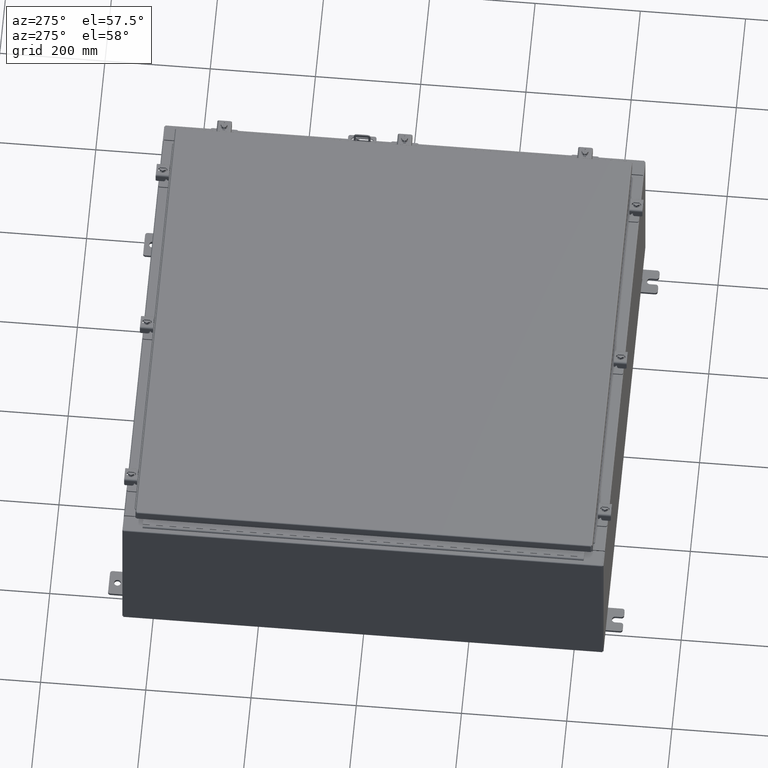
[diagram: clean part render]
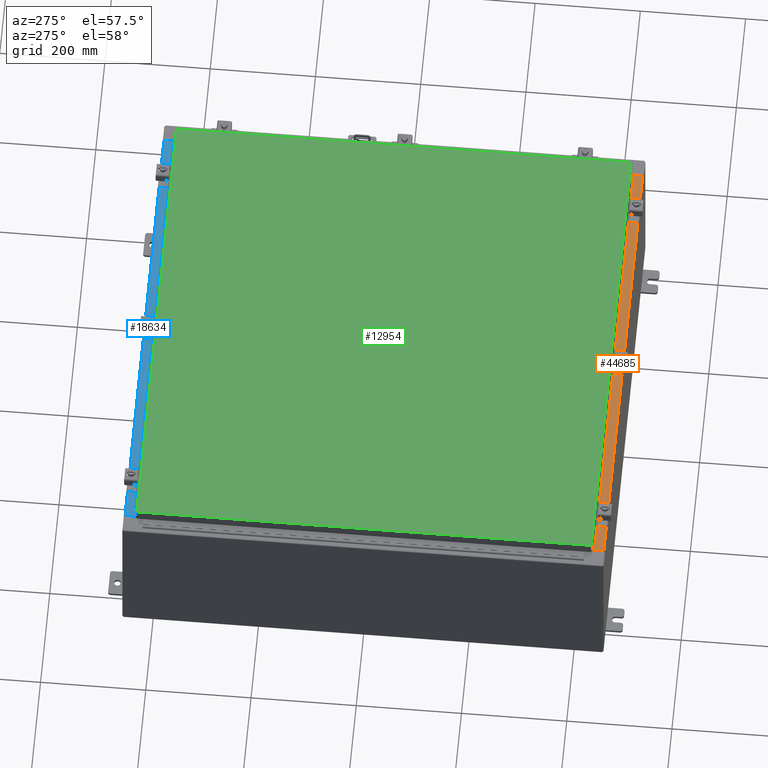
[diagram: same view with three faces highlighted in distinct colors, each labeled with its STEP entity id]
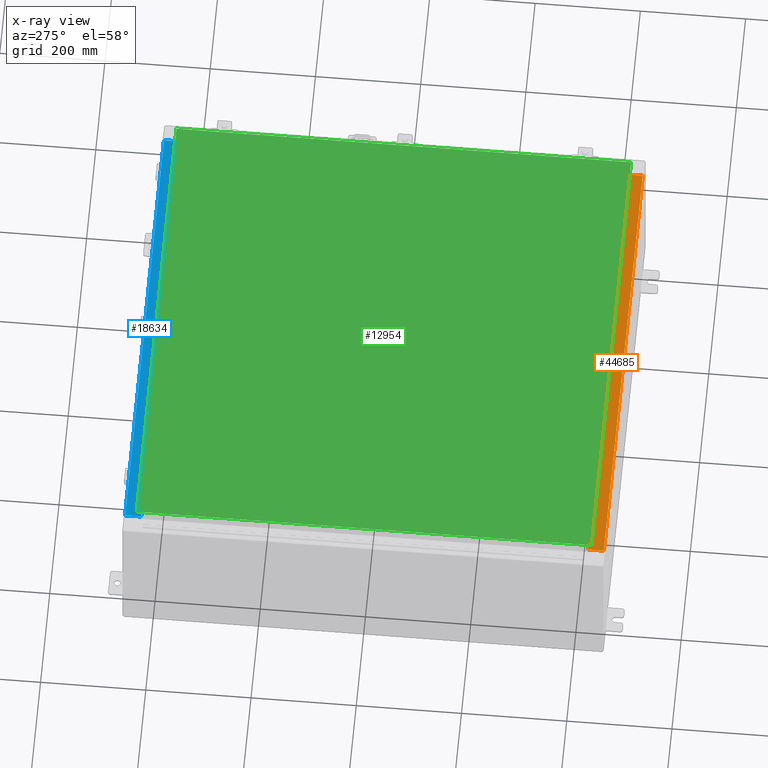
[diagram: x-ray of the same camera — body ghosted, the three highlighted faces saturated]
A machine part, auxiliary view with three faces highlighted in distinct colors.
The next image is the same camera in x-ray (body ghosted, the three faces saturated) — at least one of them is partly hidden behind the body in this view.
Their STEP definitions:

[orange] entity #44685 — the highlighted planar face has unit normal (-0, -0, 1).
#267 = CARTESIAN_POINT ( 'NONE',  ( -16.63719999999999600, -0.08769999999999972300, 5.999999999999999100 ) ) ;
#1377 = LINE ( 'NONE', #39994, #36187 ) ;
#1859 = CARTESIAN_POINT ( 'NONE',  ( -2.276882898771239300E-018, 1.610972251716581800E-014, 5.999999999999999100 ) ) ;
#2425 = CARTESIAN_POINT ( 'NONE',  ( -16.63719999999999600, -1.287299999999998600, 6.000000000000002700 ) ) ;
#3907 = CARTESIAN_POINT ( 'NONE',  ( -16.63719999999999600, -0.07469999999999973900, 5.999999999999999100 ) ) ;
#4523 = CARTESIAN_POINT ( 'NONE',  ( -5.156971724347648400E-018, -0.08769999999999972300, 5.999999999999999100 ) ) ;
#4798 = DIRECTION ( 'NONE',  ( -1.000000000000000000, 3.284023746380717400E-017, -8.784060394284559800E-032 ) ) ;
#7474 = DIRECTION ( 'NONE',  ( -0.0000000000000000000, 1.000000000000000000, -2.674785894579892700E-015 ) ) ;
#8586 = AXIS2_PLACEMENT_3D ( 'NONE', #1859, #19436, #43581 ) ;
#11648 = EDGE_CURVE ( 'NONE', #17653, #25642, #35453, .T. ) ;
#12433 = VERTEX_POINT ( 'NONE', #41886 ) ;
#15444 = EDGE_CURVE ( 'NONE', #12433, #34662, #1377, .T. ) ;
#15940 = PLANE ( 'NONE',  #8586 ) ;
#17471 = ORIENTED_EDGE ( 'NONE', *, *, #36037, .F. ) ;
#17653 = VERTEX_POINT ( 'NONE', #37728 ) ;
#19015 = ORIENTED_EDGE ( 'NONE', *, *, #24809, .F. ) ;
#19092 = ORIENTED_EDGE ( 'NONE', *, *, #11648, .T. ) ;
#19436 = DIRECTION ( 'NONE',  ( 0.0000000000000000000, 2.674785894579892700E-015, 1.000000000000000000 ) ) ;
#22489 = VECTOR ( 'NONE', #7474, 39.37007874015748100 ) ;
#23613 = LINE ( 'NONE', #3907, #22489 ) ;
#23844 = EDGE_LOOP ( 'NONE', ( #19015, #41181, #17471, #19092 ) ) ;
#24809 = EDGE_CURVE ( 'NONE', #34662, #25642, #23613, .T. ) ;
#25642 = VERTEX_POINT ( 'NONE', #267 ) ;
#26361 = VECTOR ( 'NONE', #4798, 39.37007874015748100 ) ;
#31276 = DIRECTION ( 'NONE',  ( -0.0000000000000000000, -1.000000000000000000, 3.566381192773190000E-015 ) ) ;
#34662 = VERTEX_POINT ( 'NONE', #2425 ) ;
#35453 = LINE ( 'NONE', #4523, #26361 ) ;
#36037 = EDGE_CURVE ( 'NONE', #17653, #12433, #43887, .T. ) ;
#36187 = VECTOR ( 'NONE', #40144, 39.37007874015748100 ) ;
#37728 = CARTESIAN_POINT ( 'NONE',  ( 16.63720000000000400, -0.08769999999999948700, 5.999999999999999100 ) ) ;
#39994 = CARTESIAN_POINT ( 'NONE',  ( 16.63720000000000400, -1.287299999999999400, 6.000000000000001800 ) ) ;
#40144 = DIRECTION ( 'NONE',  ( -1.000000000000000000, 0.0000000000000000000, 0.0000000000000000000 ) ) ;
#41181 = ORIENTED_EDGE ( 'NONE', *, *, #15444, .F. ) ;
#41886 = CARTESIAN_POINT ( 'NONE',  ( 16.63720000000000400, -1.287299999999999400, 6.000000000000003600 ) ) ;
#42791 = VECTOR ( 'NONE', #31276, 39.37007874015748100 ) ;
#43581 = DIRECTION ( 'NONE',  ( 0.0000000000000000000, -1.000000000000000000, 2.674785894579892700E-015 ) ) ;
#43887 = LINE ( 'NONE', #44930, #42791 ) ;
#44239 = FACE_OUTER_BOUND ( 'NONE', #23844, .T. ) ;
#44685 = ADVANCED_FACE ( 'NONE', ( #44239 ), #15940, .T. ) ;
#44930 = CARTESIAN_POINT ( 'NONE',  ( 16.63720000000000400, -1.300299999999999800, 6.000000000000003600 ) ) ;

[blue] entity #18634 — the highlighted planar face has unit normal (0, 0, 1).
#39 = AXIS2_PLACEMENT_3D ( 'NONE', #26577, #9041, #12690 ) ;
#1810 = CARTESIAN_POINT ( 'NONE',  ( 16.63720000000000400, -1.300299999999999800, 6.000000000000003600 ) ) ;
#4980 = CARTESIAN_POINT ( 'NONE',  ( -16.63719999999999600, -0.08769999999999972300, 5.999999999999999100 ) ) ;
#5904 = EDGE_LOOP ( 'NONE', ( #14656, #32094, #37848, #15738 ) ) ;
#7905 = FACE_OUTER_BOUND ( 'NONE', #5904, .T. ) ;
#8058 = VERTEX_POINT ( 'NONE', #39473 ) ;
#9041 = DIRECTION ( 'NONE',  ( 0.0000000000000000000, 2.674785894579892700E-015, 1.000000000000000000 ) ) ;
#9206 = PLANE ( 'NONE',  #39 ) ;
#9861 = EDGE_CURVE ( 'NONE', #8058, #12275, #13349, .T. ) ;
#10294 = CARTESIAN_POINT ( 'NONE',  ( -16.63719999999999600, -1.287299999999998600, 6.000000000000002700 ) ) ;
#10701 = EDGE_CURVE ( 'NONE', #33085, #16638, #18248, .T. ) ;
#12275 = VERTEX_POINT ( 'NONE', #10294 ) ;
#12690 = DIRECTION ( 'NONE',  ( 0.0000000000000000000, -1.000000000000000000, 2.674785894579892700E-015 ) ) ;
#13349 = LINE ( 'NONE', #16023, #38779 ) ;
#14656 = ORIENTED_EDGE ( 'NONE', *, *, #43371, .F. ) ;
#15738 = ORIENTED_EDGE ( 'NONE', *, *, #10701, .T. ) ;
#15880 = DIRECTION ( 'NONE',  ( -1.000000000000000000, 0.0000000000000000000, 0.0000000000000000000 ) ) ;
#16023 = CARTESIAN_POINT ( 'NONE',  ( 16.63720000000000400, -1.287299999999999400, 6.000000000000001800 ) ) ;
#16638 = VERTEX_POINT ( 'NONE', #4980 ) ;
#18248 = LINE ( 'NONE', #27522, #44720 ) ;
#18634 = ADVANCED_FACE ( 'NONE', ( #7905 ), #9206, .T. ) ;
#19019 = LINE ( 'NONE', #1810, #27233 ) ;
#19493 = VECTOR ( 'NONE', #24407, 39.37007874015748100 ) ;
#20567 = CARTESIAN_POINT ( 'NONE',  ( 16.63720000000000400, -0.08769999999999948700, 5.999999999999999100 ) ) ;
#24407 = DIRECTION ( 'NONE',  ( -0.0000000000000000000, 1.000000000000000000, -2.674785894579892700E-015 ) ) ;
#26577 = CARTESIAN_POINT ( 'NONE',  ( -2.276882898771239300E-018, 1.610972251716581800E-014, 5.999999999999999100 ) ) ;
#27090 = DIRECTION ( 'NONE',  ( -1.000000000000000000, 3.284023746380717400E-017, -8.784060394284559800E-032 ) ) ;
#27233 = VECTOR ( 'NONE', #43533, 39.37007874015748100 ) ;
#27522 = CARTESIAN_POINT ( 'NONE',  ( -5.156971724347648400E-018, -0.08769999999999972300, 5.999999999999999100 ) ) ;
#27922 = CARTESIAN_POINT ( 'NONE',  ( -16.63719999999999600, -0.07469999999999973900, 5.999999999999999100 ) ) ;
#32094 = ORIENTED_EDGE ( 'NONE', *, *, #9861, .F. ) ;
#33085 = VERTEX_POINT ( 'NONE', #20567 ) ;
#37848 = ORIENTED_EDGE ( 'NONE', *, *, #38231, .F. ) ;
#37869 = LINE ( 'NONE', #27922, #19493 ) ;
#38231 = EDGE_CURVE ( 'NONE', #33085, #8058, #19019, .T. ) ;
#38779 = VECTOR ( 'NONE', #15880, 39.37007874015748100 ) ;
#39473 = CARTESIAN_POINT ( 'NONE',  ( 16.63720000000000400, -1.287299999999999400, 6.000000000000003600 ) ) ;
#43371 = EDGE_CURVE ( 'NONE', #12275, #16638, #37869, .T. ) ;
#43533 = DIRECTION ( 'NONE',  ( -0.0000000000000000000, -1.000000000000000000, 3.566381192773190000E-015 ) ) ;
#44720 = VECTOR ( 'NONE', #27090, 39.37007874015748100 ) ;

[green] entity #12954 — the highlighted planar face has unit normal (0, 0, -1).
#532 = CARTESIAN_POINT ( 'NONE',  ( 16.99029999999999800, -17.00629999999999600, -2.048885995248197400E-016 ) ) ;
#2104 = DIRECTION ( 'NONE',  ( -1.000000000000000000, -0.0000000000000000000, -0.0000000000000000000 ) ) ;
#2209 = CARTESIAN_POINT ( 'NONE',  ( 16.99029999999999800, 17.00630000000000700, 8.878505979408856000E-016 ) ) ;
#2421 = LINE ( 'NONE', #12295, #29214 ) ;
#2767 = ORIENTED_EDGE ( 'NONE', *, *, #6768, .T. ) ;
#3625 = VERTEX_POINT ( 'NONE', #18213 ) ;
#6156 = LINE ( 'NONE', #23857, #40845 ) ;
#6768 = EDGE_CURVE ( 'NONE', #39639, #26813, #6156, .T. ) ;
#7011 = DIRECTION ( 'NONE',  ( -1.000000000000000000, 0.0000000000000000000, -0.0000000000000000000 ) ) ;
#7111 = DIRECTION ( 'NONE',  ( 0.0000000000000000000, 0.0000000000000000000, -1.000000000000000000 ) ) ;
#7229 = CARTESIAN_POINT ( 'NONE',  ( 0.0000000000000000000, 0.0000000000000000000, 0.0000000000000000000 ) ) ;
#7563 = PLANE ( 'NONE',  #16910 ) ;
#10164 = VERTEX_POINT ( 'NONE', #40426 ) ;
#11751 = EDGE_CURVE ( 'NONE', #26813, #3625, #41378, .T. ) ;
#12295 = CARTESIAN_POINT ( 'NONE',  ( -16.99029999999998400, 17.00630000000000300, -2.048885995248197400E-016 ) ) ;
#12675 = DIRECTION ( 'NONE',  ( 0.0000000000000000000, -1.000000000000000000, 0.0000000000000000000 ) ) ;
#12954 = ADVANCED_FACE ( 'NONE', ( #41820 ), #7563, .F. ) ;
#13798 = CARTESIAN_POINT ( 'NONE',  ( 16.99029999999999800, 17.00630000000000700, 8.878505979408856000E-016 ) ) ;
#14169 = ORIENTED_EDGE ( 'NONE', *, *, #16394, .T. ) ;
#14684 = VECTOR ( 'NONE', #20040, 39.37007874015748100 ) ;
#16394 = EDGE_CURVE ( 'NONE', #3625, #10164, #2421, .T. ) ;
#16910 = AXIS2_PLACEMENT_3D ( 'NONE', #7229, #7111, #7011 ) ;
#18213 = CARTESIAN_POINT ( 'NONE',  ( -16.99029999999998400, 17.00630000000000300, -2.048885995248197400E-016 ) ) ;
#20040 = DIRECTION ( 'NONE',  ( 1.000000000000000000, -0.0000000000000000000, -0.0000000000000000000 ) ) ;
#20833 = DIRECTION ( 'NONE',  ( 0.0000000000000000000, 1.000000000000000000, 0.0000000000000000000 ) ) ;
#23071 = VECTOR ( 'NONE', #2104, 39.37007874015748100 ) ;
#23424 = CARTESIAN_POINT ( 'NONE',  ( -16.99029999999999800, -17.00630000000000000, -2.048885995248197400E-016 ) ) ;
#23857 = CARTESIAN_POINT ( 'NONE',  ( 16.99029999999999800, -17.00629999999999600, -2.048885995248197400E-016 ) ) ;
#26813 = VERTEX_POINT ( 'NONE', #13798 ) ;
#29214 = VECTOR ( 'NONE', #12675, 39.37007874015748100 ) ;
#30735 = EDGE_LOOP ( 'NONE', ( #41335, #2767, #41978, #14169 ) ) ;
#37836 = EDGE_CURVE ( 'NONE', #10164, #39639, #42271, .T. ) ;
#39639 = VERTEX_POINT ( 'NONE', #532 ) ;
#40426 = CARTESIAN_POINT ( 'NONE',  ( -16.99029999999999800, -17.00630000000000000, -2.048885995248197400E-016 ) ) ;
#40845 = VECTOR ( 'NONE', #20833, 39.37007874015748100 ) ;
#41335 = ORIENTED_EDGE ( 'NONE', *, *, #37836, .T. ) ;
#41378 = LINE ( 'NONE', #2209, #23071 ) ;
#41820 = FACE_OUTER_BOUND ( 'NONE', #30735, .T. ) ;
#41978 = ORIENTED_EDGE ( 'NONE', *, *, #11751, .T. ) ;
#42271 = LINE ( 'NONE', #23424, #14684 ) ;